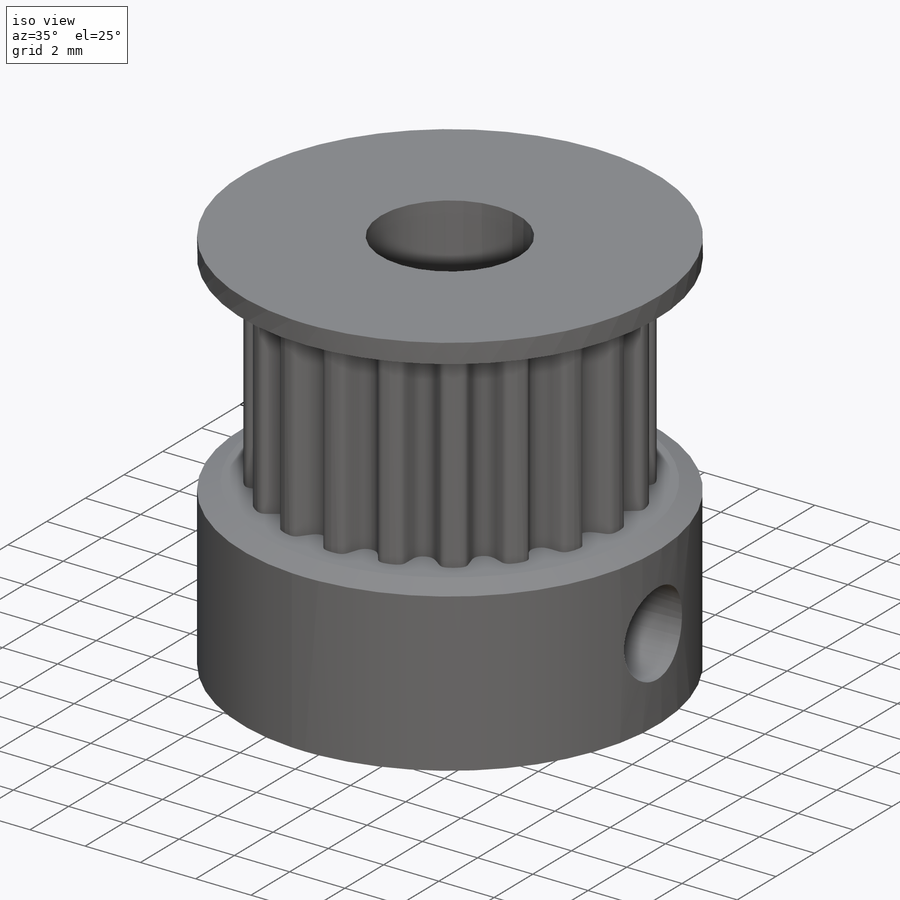
[diagram: iso view]
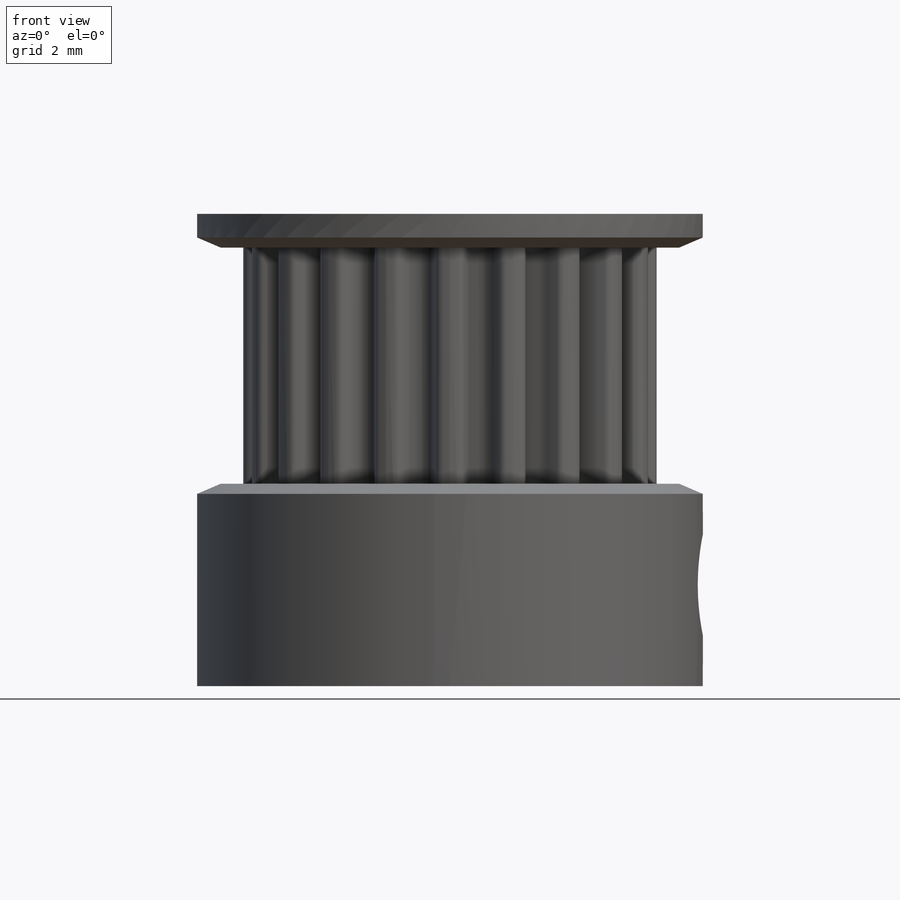
[diagram: front view]
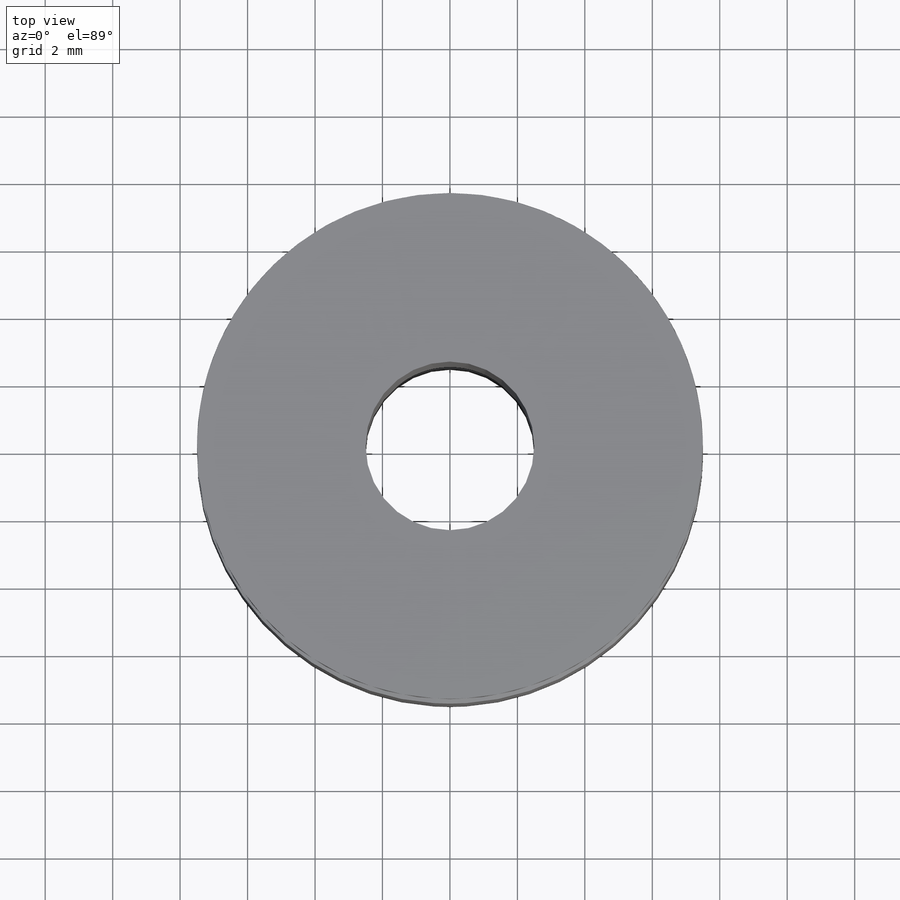
[diagram: top view]
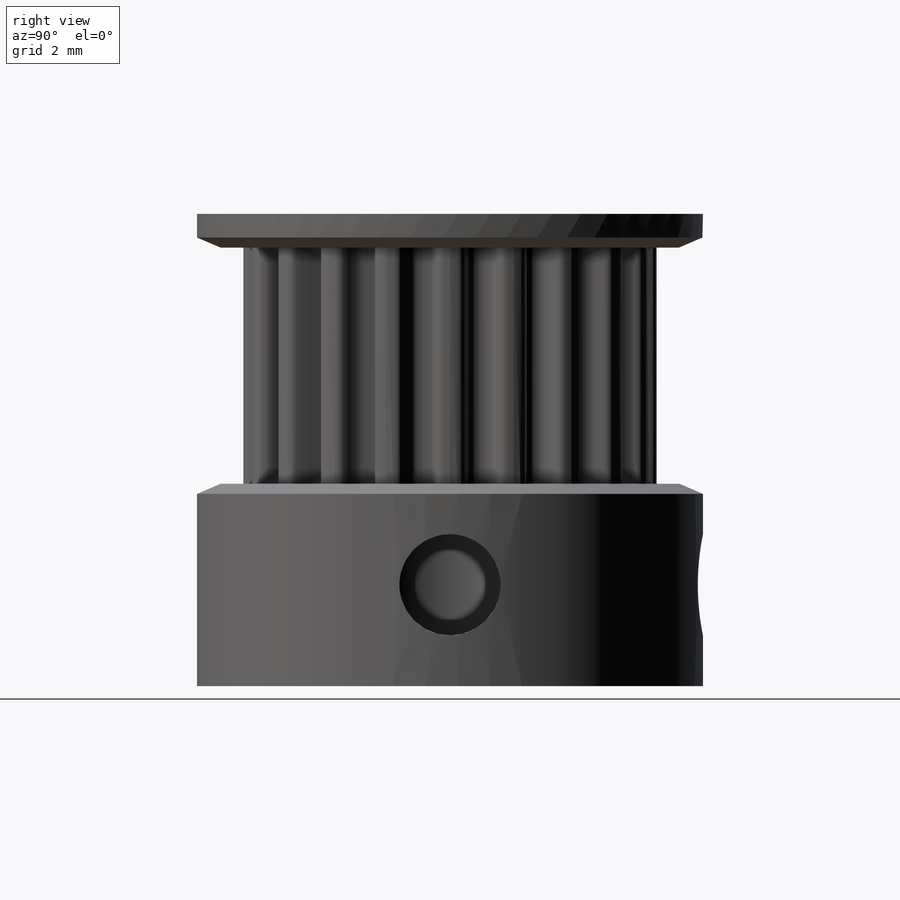
[diagram: right view]
SOLIDWORKS PART (.sldprt)
format: sldprt  version: not decoded by parser v0  size: 513,024 bytes
history: native  units: mm
features: sketch x8, extrude x3, cut_extrude x3, chamfer x2, material x1, plane x1 (+13 scaffold rows collapsed)
feature tree (31):
  scaffold x13  (default folders/planes/origin — collapsed)
  material  "6063-T5"
  sketch  "Sketch1"  dims[D1=15.0mm]
  extrude  "Boss-Extrude1"  Depth=6mm
  sketch  "Sketch2"  dims[D1=~12.254941mm D2=0.75mm D3=2.0 D4=2.0]
  extrude  "Boss-Extrude2"  Depth=7mm
  sketch  "Sketch3"
  extrude  "Boss-Extrude3"  Depth=1mm
  chamfer  "Chamfer1"  Distance=0.7mm
  chamfer  "Chamfer2"  Distance=0.3mm
  sketch  "Sketch4"  dims[D1=5.0mm]
  cut_extrude  "Cut-Extrude1"  [1 undecoded]
  sketch  "Sketch5"  dims[D1=3.0mm D2=3.0mm]
  cut_extrude  "Cut-Extrude2"  [1 undecoded]
  sketch  "Sketch6"  dims[D1=3.0mm D2=3.0mm]
  cut_extrude  "Cut-Extrude3"  [1 undecoded]
  plane  "Plane1"
  sketch  "Sketch7"
  sketch  "Sketch8"
decode coverage: 10 of 16 modeling features carry decoded parameters
note: ~ marks probable driven/reference dimensions
note: 3 parameter values undecoded
summary: no parameter record found for 3 features
note: suppression state not decoded; provenance and decode notes live in map.json
